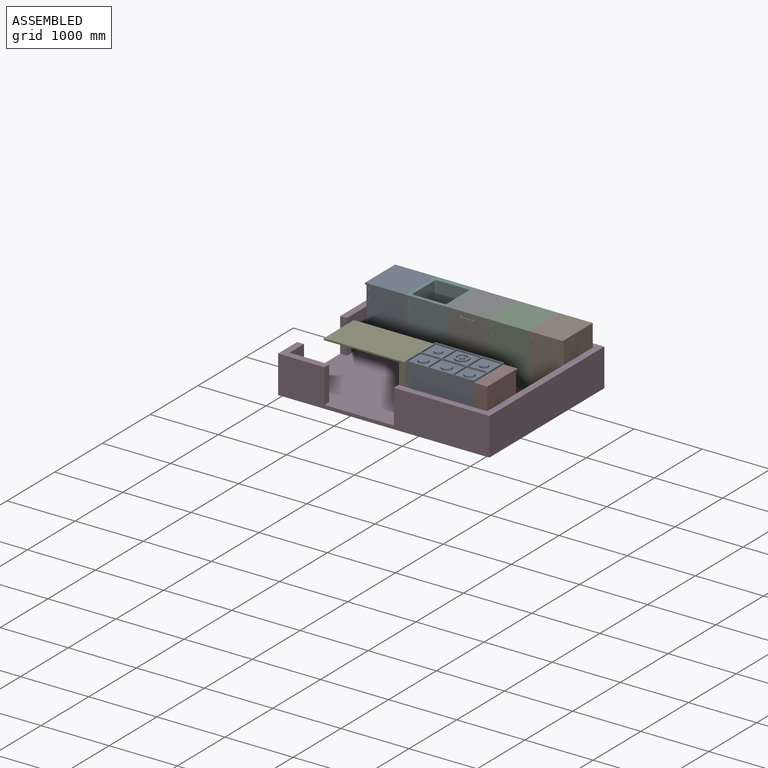
[diagram: assembled view]
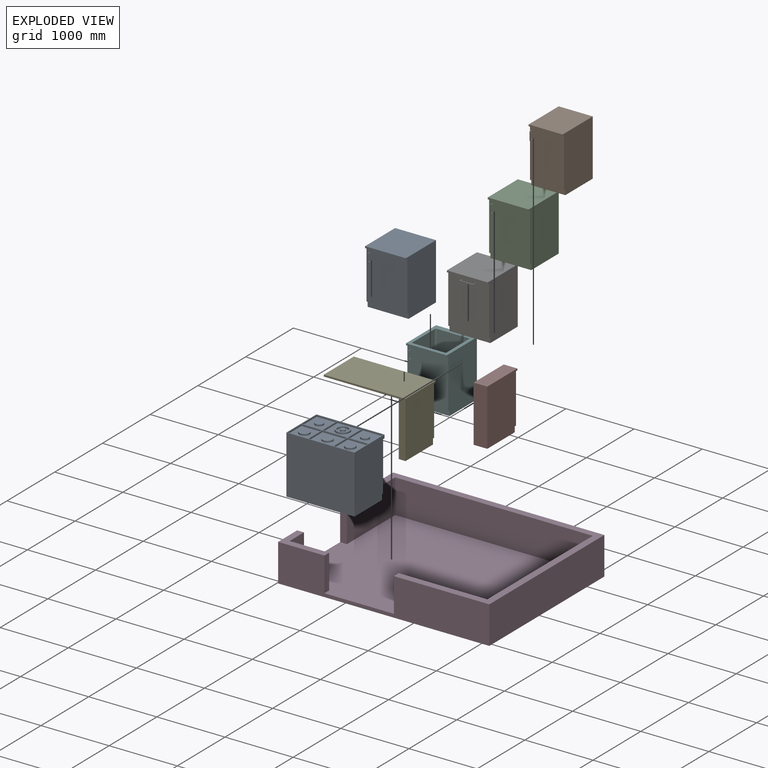
[diagram: exploded view]
GUIDED TOUR — MATED ASSEMBLY (Onshape document d16c2304ecbebba6e76022b3, AutoMate assembly d16c2304ecbebba6e76022b3_629947fe1b3868a177695bd1_581ccf06eaa958c4bb0ec982_default)

This assembly has 9 components, labeled P0..P8 below (a component is one placed occurrence of a part; the same part can appear more than once), held together by 8 mates. A mate is a constraint between two components; its type names the relative motion it leaves free:
  PLANAR — leaves sliding in the plane through the listed point (normal = the listed direction) and rotation about that normal free.
Axis/direction vectors are unit vectors and 'through' points are millimeter coordinates, both in the assembly's world frame.

MATES
  1. PLANAR "Planar 4": P2 <-> P6, direction (0.000, 0.000, 1.000) through (-1009.45, 1149.44, 1355.72) mm
  2. PLANAR "Planar 6": P4 <-> P3, direction (0.000, 0.000, 1.000) through (-1209.45, -1060.56, 1355.72) mm
  3. PLANAR "Planar 5": P1 <-> P2, direction (0.000, 0.000, 1.000) through (-409.45, 1149.44, 1355.72) mm
  4. PLANAR "Planar 1": P0 <-> P3, direction (0.000, 0.000, 1.000) through (-2809.45, 1149.44, 1355.72) mm
  5. PLANAR "Planar 8": P8 <-> P4, direction (0.000, -1.000, 0.000) through (-1109.45, -1060.56, 1355.72) mm
  6. PLANAR "Planar 3": P6 <-> P5, direction (0.000, 0.000, 1.000) through (-1609.45, 1149.44, 1355.72) mm
  7. PLANAR "Planar 9": P7 <-> P8, direction (0.000, 0.000, 1.000) through (-109.45, -1060.56, 1355.72) mm
  8. PLANAR "Planar 2": P5 <-> P0, direction (0.000, 0.000, 1.000) through (-2209.45, 1149.44, 1355.72) mm

ASSEMBLY ORDER
  1. P7 — the base component [order verified]
  2. P4 [order verified]
  3. P3 [order verified]
  4. P6 [order verified]
  5. P2 [order verified]
  6. P0 [order verified]
  7. P5 [order verified]
  8. P8 [order verified]
  9. P1 [order verified]
Order-tag legend:
  [order verified] — this step's position reverses a verified removal order: the component was checked to insert without passing through the ones already placed.

Of the 9 components, 3 carry the full construction recipe — the FeatureScript program that regenerates the part's solid from scratch; the rest are supplied as boundary geometry only.
Each toured component is shown spotlighted twice — in the assembled view, then in the exploded view, where a leader line traces a displaced component back to its assembled socket (saturated green if recipe-attached, orange if geometry-only; every other component desaturated gray) — followed by its recipe or geometry summary and the mates that hold it.
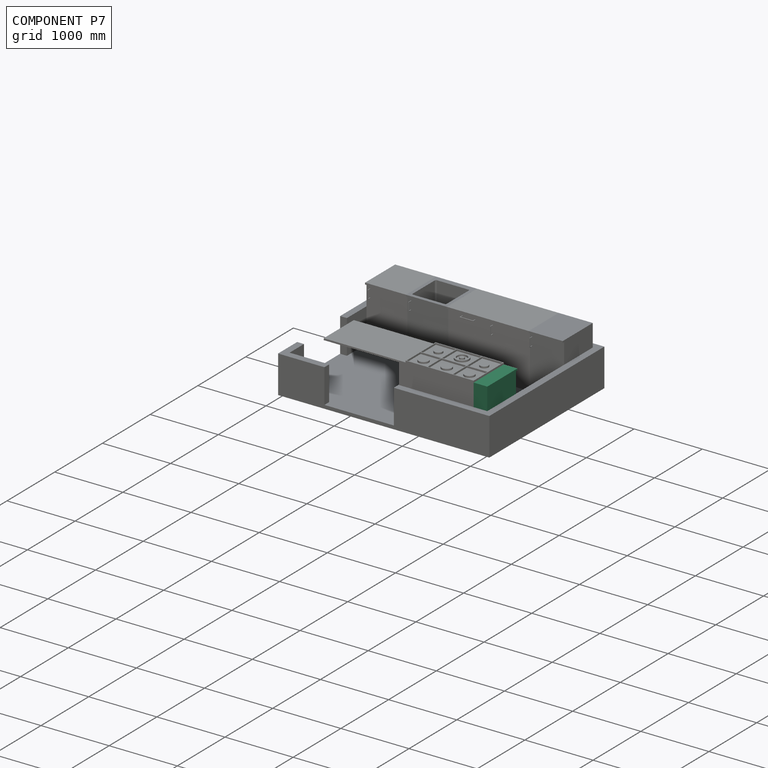
[diagram: component P7 — assembled]
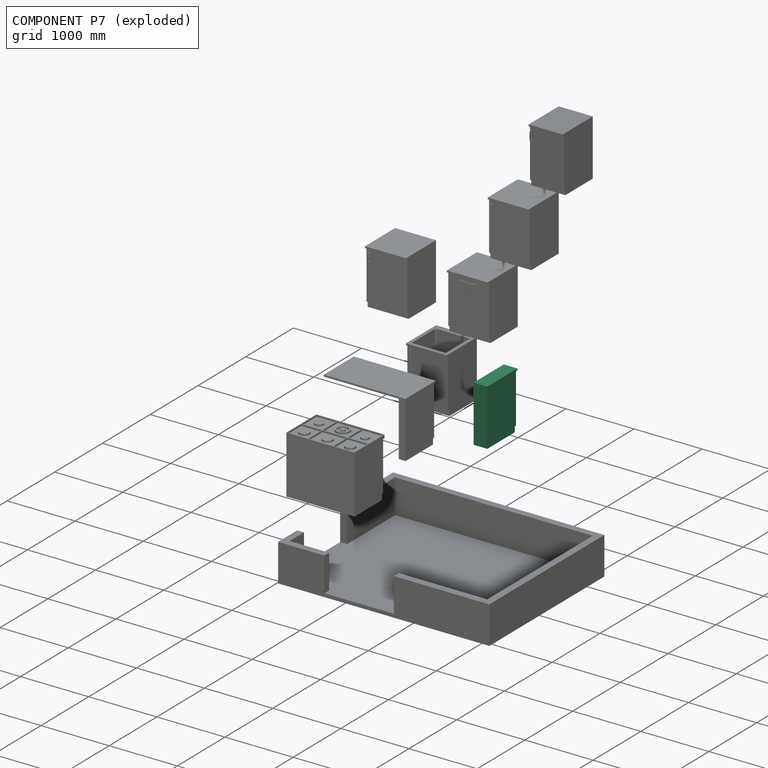
[diagram: component P7 — exploded]
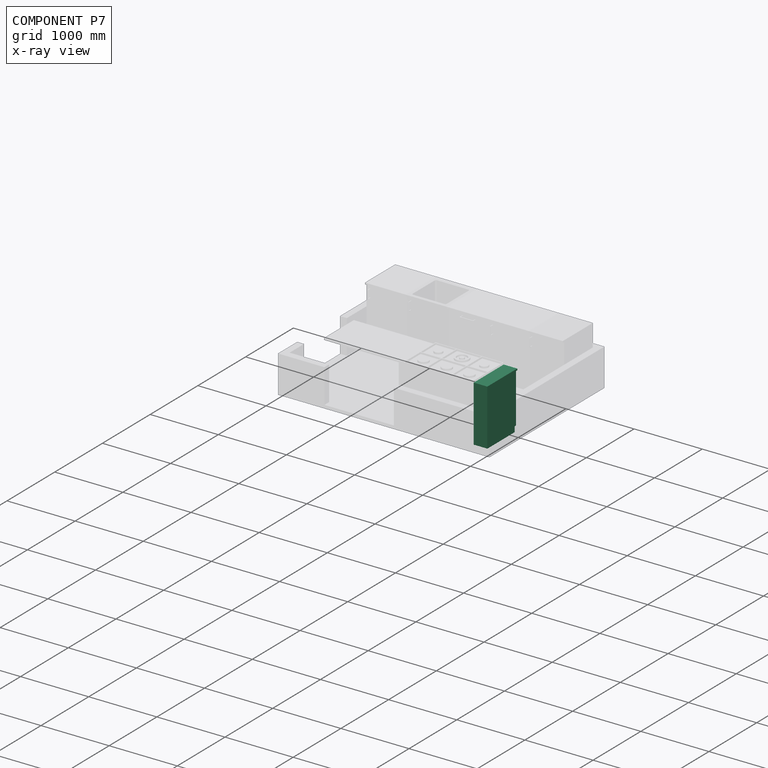
[diagram: component P7 — x-ray view]
COMPONENT P7 — recipe-attached (CADFS 00877743, mesh-verified: the recipe's output STEP matches this component's geometry to below the mesh-comparison resolution (tessellation chordal tolerance ~1.59 mm)).
Held by: PLANAR mate "Planar 9" to P8.
Construction recipe (FeatureScript — the CAD program that rebuilds this solid; sketch coordinates are in the units given by the * unit suffixes, e.g. mm):

FeatureScript 1511;
import(path : "onshape/std/geometry.fs", version : "1511.0");
import(path : "onshape/std/common.fs", version : "1511.0");
const mm = millimeter;
const VERTEX = EntityType.VERTEX;
const EDGE = EntityType.EDGE;
const FACE = EntityType.FACE;
const BODY = EntityType.BODY;
function v(x, y){return vector(x, y);}
function OD(order){return orderDisambiguation(order);}
function OSD(set){return originalSetDisambiguation(set);}
function TD(topology){return topologyDisambiguation(topology);}
function TDD(query){return trueDependencyDisambiguation(query);}
function sQuery(a, b, c) {return sketchEntityQuery(a, b, c);}

annotation { "Feature Type Name" : "Feature", "Feature Type Description" : "" }
export const myFeature = defineFeature(function(context is Context, id is Id, definition is map)
    precondition{}
    {
        {
            var Q0;
            Q0=qCreatedBy(makeId("Top.planeOp"),FACE);
            var sketch = newSketch(context, id + "F0", { "sketchPlane" : qUnion([Q0])});
            skLineSegment(sketch, "E0.bottom", {"start": v(-300, 100) * mm, "end": v(300, 100) * mm});
            skLineSegment(sketch, "E0.top", {"start": v(-300, -100) * mm, "end": v(300, -100) * mm});
            skLineSegment(sketch, "E0.left", {"start": v(-300, 100) * mm, "end": v(-300, -100) * mm});
            skLineSegment(sketch, "E0.right", {"start": v(300, 100) * mm, "end": v(300, -100) * mm});
            skPoint(sketch, "E0.middle", {"position": v(0, 0) * mm});
            skSolve(sketch);
        }
        {
            var Q0;
            Q0=qSketchRegion(id+"F0",true);
            extrude(context, id + "F1", {"entities" : qUnion([Q0]), "depth" : 800 * mm, "offsetDistance" : 25 * mm});
        }
        {
            var Q0;
            Q0=makeQuery(id+"F1.opExtrude","SWEPT_FACE",FACE,{"disambiguationData":[OSD([sQuery(id+"F0.wireOp",EDGE,"E0.right")])]});
            var sketch = newSketch(context, id + "F2", { "sketchPlane" : qUnion([Q0])});
            skLineSegment(sketch, "E1.bottom", {"start": v(-100, 0) * mm, "end": v(100, 0) * mm});
            skLineSegment(sketch, "E1.top", {"start": v(-100, 80) * mm, "end": v(100, 80) * mm});
            skLineSegment(sketch, "E1.left", {"start": v(-100, 0) * mm, "end": v(-100, 80) * mm});
            skLineSegment(sketch, "E1.right", {"start": v(100, 0) * mm, "end": v(100, 80) * mm});
            skSolve(sketch);
        }
        {
            var Q0;
            Q0=qSketchRegion(id+"F2",true);
            extrude(context, id + "F3", {"entities" : qUnion([Q0]), "operationType" : NewBodyOperationType.REMOVE, "oppositeDirection" : true, "depth" : 25 * mm, "offsetDistance" : 25 * mm});
        }
        {
            var Q0;
            Q0=makeQuery(id+"F1.opExtrude","CAP_FACE",FACE,{"disambiguationData":[OSD([sQuery(id+"F0.wireOp",EDGE,"E0.bottom"),sQuery(id+"F0.wireOp",EDGE,"E0.top"),sQuery(id+"F0.wireOp",EDGE,"E0.left"),sQuery(id+"F0.wireOp",EDGE,"E0.right")])],"isStart":false});
            var sketch = newSketch(context, id + "F4", { "sketchPlane" : qUnion([Q0])});
            skLineSegment(sketch, "E2.bottom", {"start": v(-300, -100) * mm, "end": v(330, -100) * mm});
            skLineSegment(sketch, "E2.top", {"start": v(-300, 100) * mm, "end": v(330, 100) * mm});
            skLineSegment(sketch, "E2.left", {"start": v(-300, -100) * mm, "end": v(-300, 100) * mm});
            skLineSegment(sketch, "E2.right", {"start": v(330, -100) * mm, "end": v(330, 100) * mm});
            skSolve(sketch);
        }
        {
            var Q0;
            Q0=qSketchRegion(id+"F4",true);
            extrude(context, id + "F5", {"entities" : qUnion([Q0]), "operationType" : NewBodyOperationType.ADD, "depth" : 25 * mm, "offsetDistance" : 25 * mm});
        }
    });
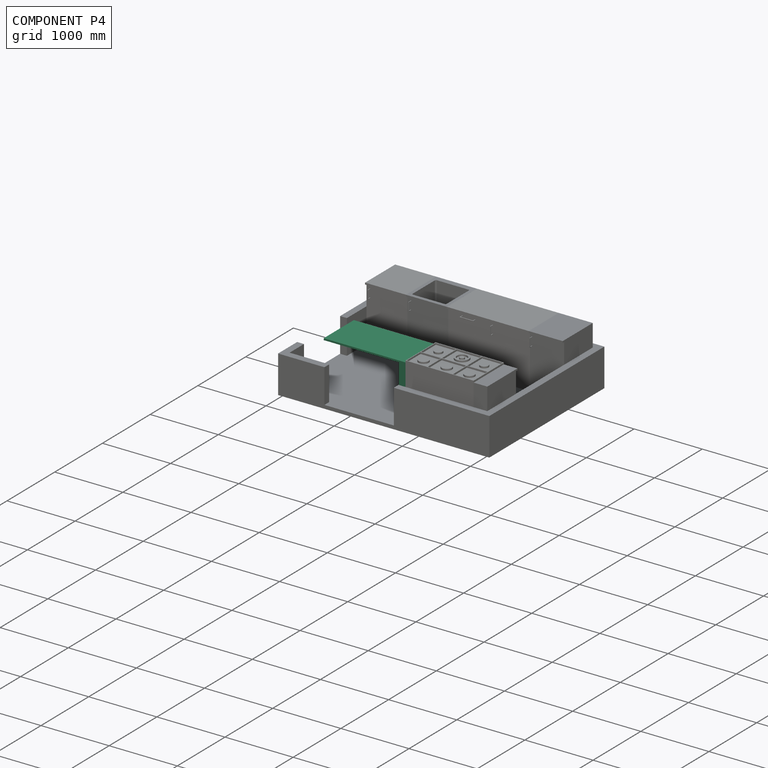
[diagram: component P4 — assembled]
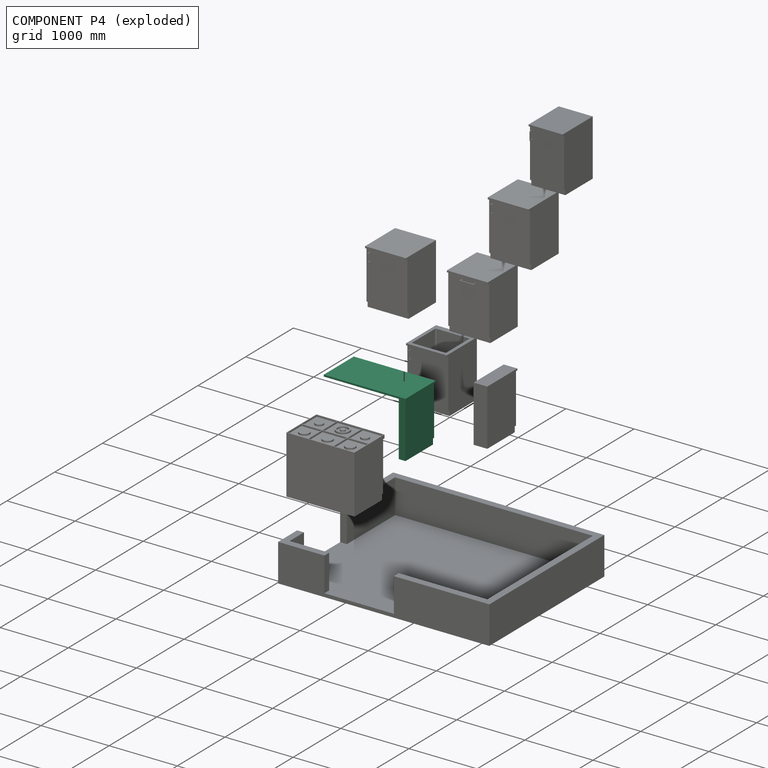
[diagram: component P4 — exploded]
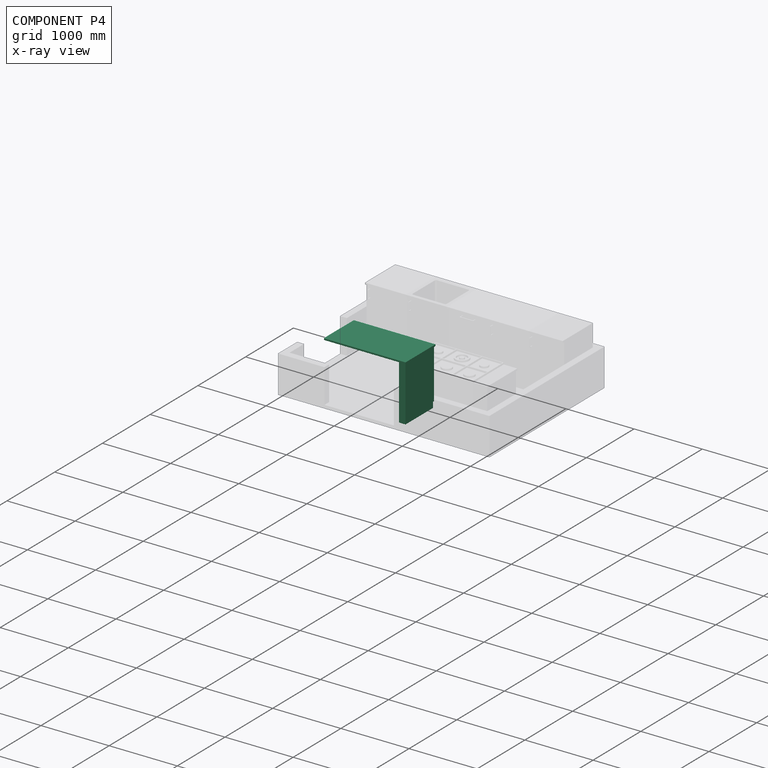
[diagram: component P4 — x-ray view]
COMPONENT P4 — recipe-attached (CADFS 00870529, mesh-verified: the recipe's output STEP matches this component's geometry to below the mesh-comparison resolution (tessellation chordal tolerance ~2.38 mm)).
Held by: PLANAR mate "Planar 6" to P3; PLANAR mate "Planar 8" to P8.
Construction recipe (FeatureScript — the CAD program that rebuilds this solid; sketch coordinates are in the units given by the * unit suffixes, e.g. mm):

FeatureScript 1511;
import(path : "onshape/std/geometry.fs", version : "1511.0");
import(path : "onshape/std/common.fs", version : "1511.0");
const mm = millimeter;
const VERTEX = EntityType.VERTEX;
const EDGE = EntityType.EDGE;
const FACE = EntityType.FACE;
const BODY = EntityType.BODY;
function v(x, y){return vector(x, y);}
function OD(order){return orderDisambiguation(order);}
function OSD(set){return originalSetDisambiguation(set);}
function TD(topology){return topologyDisambiguation(topology);}
function TDD(query){return trueDependencyDisambiguation(query);}
function sQuery(a, b, c) {return sketchEntityQuery(a, b, c);}

annotation { "Feature Type Name" : "Feature", "Feature Type Description" : "" }
export const myFeature = defineFeature(function(context is Context, id is Id, definition is map)
    precondition{}
    {
        {
            var Q0;
            Q0=qCreatedBy(makeId("Top.planeOp"),FACE);
            var sketch = newSketch(context, id + "F0", { "sketchPlane" : qUnion([Q0])});
            skLineSegment(sketch, "E0.bottom", {"start": v(-300, 50) * mm, "end": v(300, 50) * mm});
            skLineSegment(sketch, "E0.top", {"start": v(-300, -50) * mm, "end": v(300, -50) * mm});
            skLineSegment(sketch, "E0.left", {"start": v(-300, 50) * mm, "end": v(-300, -50) * mm});
            skLineSegment(sketch, "E0.right", {"start": v(300, 50) * mm, "end": v(300, -50) * mm});
            skPoint(sketch, "E0.middle", {"position": v(0, 0) * mm});
            skSolve(sketch);
        }
        {
            var Q0;
            Q0=qSketchRegion(id+"F0",true);
            extrude(context, id + "F1", {"entities" : qUnion([Q0]), "depth" : 800 * mm, "offsetDistance" : 25 * mm});
        }
        {
            var Q0;
            Q0=makeQuery(id+"F1.opExtrude","SWEPT_FACE",FACE,{"disambiguationData":[OSD([sQuery(id+"F0.wireOp",EDGE,"E0.right")])]});
            var sketch = newSketch(context, id + "F2", { "sketchPlane" : qUnion([Q0])});
            skLineSegment(sketch, "E1.bottom", {"start": v(-50, 0) * mm, "end": v(50, 0) * mm});
            skLineSegment(sketch, "E1.top", {"start": v(-50, 80) * mm, "end": v(50, 80) * mm});
            skLineSegment(sketch, "E1.left", {"start": v(-50, 0) * mm, "end": v(-50, 80) * mm});
            skLineSegment(sketch, "E1.right", {"start": v(50, 0) * mm, "end": v(50, 80) * mm});
            skSolve(sketch);
        }
        {
            var Q0;
            Q0=qSketchRegion(id+"F2",true);
            extrude(context, id + "F3", {"entities" : qUnion([Q0]), "operationType" : NewBodyOperationType.REMOVE, "oppositeDirection" : true, "depth" : 25 * mm, "offsetDistance" : 25 * mm});
        }
        {
            var Q0;
            Q0=makeQuery(id+"F1.opExtrude","CAP_FACE",FACE,{"disambiguationData":[OSD([sQuery(id+"F0.wireOp",EDGE,"E0.bottom"),sQuery(id+"F0.wireOp",EDGE,"E0.top"),sQuery(id+"F0.wireOp",EDGE,"E0.left"),sQuery(id+"F0.wireOp",EDGE,"E0.right")])],"isStart":false});
            var sketch = newSketch(context, id + "F4", { "sketchPlane" : qUnion([Q0])});
            skLineSegment(sketch, "E2.bottom", {"start": v(-300, -50) * mm, "end": v(330, -50) * mm});
            skLineSegment(sketch, "E2.top", {"start": v(-300, 50) * mm, "end": v(330, 50) * mm});
            skLineSegment(sketch, "E2.left", {"start": v(-300, -50) * mm, "end": v(-300, 50) * mm});
            skLineSegment(sketch, "E2.right", {"start": v(330, -50) * mm, "end": v(330, 50) * mm});
            skSolve(sketch);
        }
        {
            var Q0;
            Q0=qSketchRegion(id+"F4",true);
            extrude(context, id + "F5", {"entities" : qUnion([Q0]), "operationType" : NewBodyOperationType.ADD, "depth" : 25 * mm, "offsetDistance" : 25 * mm});
        }
        {
            var Q0;
            Q0=makeQuery(id+"F5.boolean.opBoolean","MERGE",FACE,{"derivedFrom":[makeQuery(id+"F1.opExtrude","SWEPT_FACE",FACE,{"disambiguationData":[OSD([sQuery(id+"F0.wireOp",EDGE,"E0.bottom")])]}),makeQuery(id+"F5.opExtrude","SWEPT_FACE",FACE,{"disambiguationData":[OSD([sQuery(id+"F4.wireOp",EDGE,"E2.top")])]})]});
            var sketch = newSketch(context, id + "F6", { "sketchPlane" : qUnion([Q0])});
            skLineSegment(sketch, "E3.bottom", {"start": v(-330, 800) * mm, "end": v(300, 800) * mm});
            skLineSegment(sketch, "E3.top", {"start": v(-330, 825) * mm, "end": v(300, 825) * mm});
            skLineSegment(sketch, "E3.left", {"start": v(-330, 800) * mm, "end": v(-330, 825) * mm});
            skLineSegment(sketch, "E3.right", {"start": v(300, 800) * mm, "end": v(300, 825) * mm});
            skSolve(sketch);
        }
        {
            var Q0;
            Q0 = qSketchRegion(id + "F6", true);
            extrude(context, id + "F7", {"entities" : qUnion([Q0]), "operationType" : NewBodyOperationType.ADD, "depth" : 1100 * mm, "offsetDistance" : 25 * mm});
        }
    });
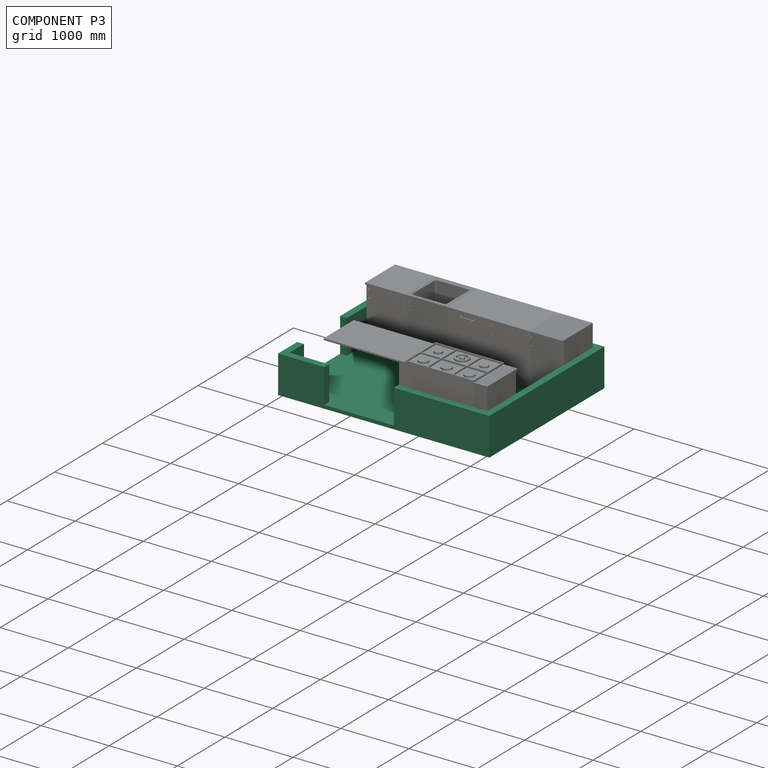
[diagram: component P3 — assembled]
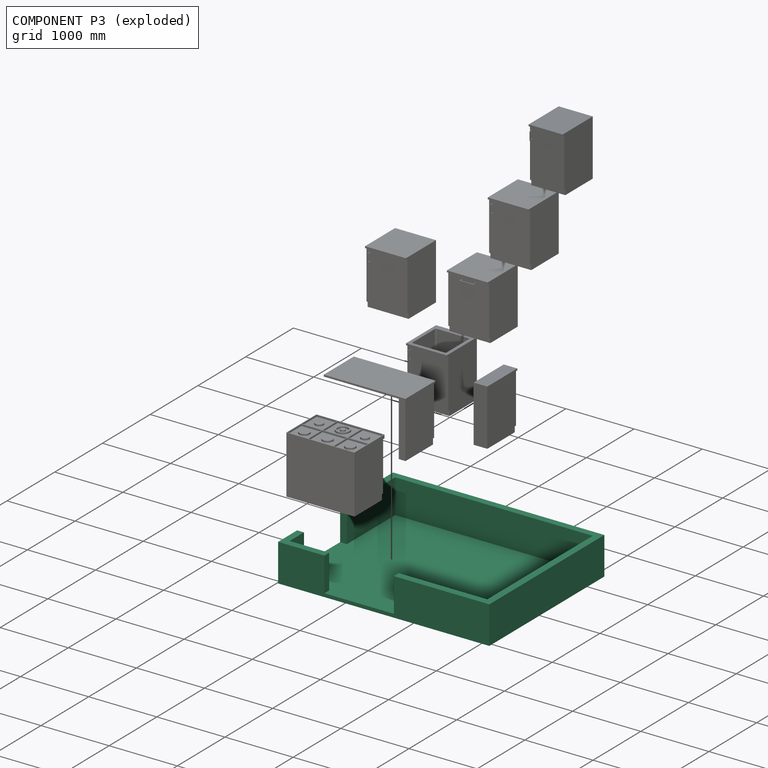
[diagram: component P3 — exploded]
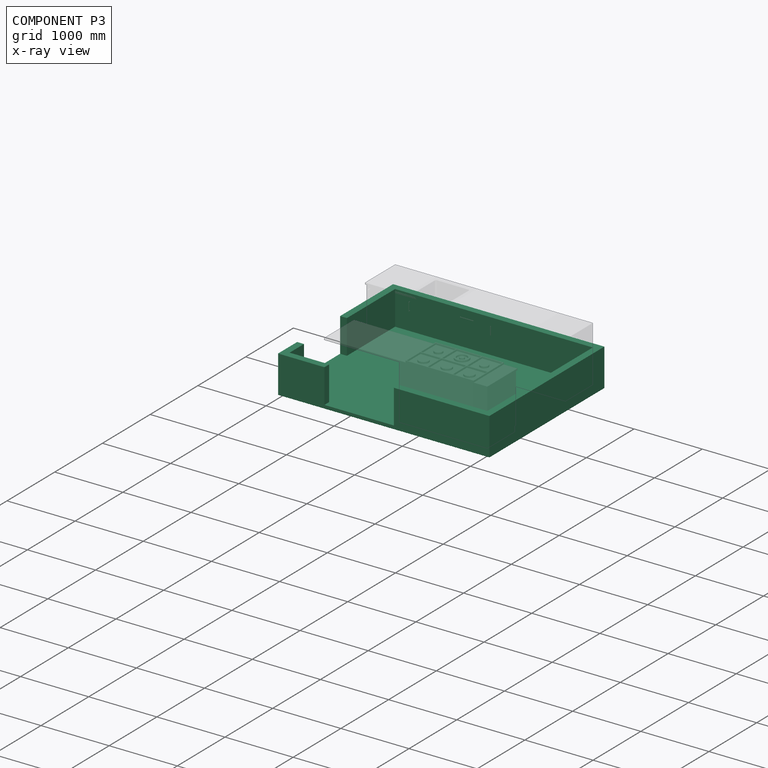
[diagram: component P3 — x-ray view]
COMPONENT P3 — recipe-attached (CADFS 00877741, mesh-verified: the recipe's output STEP matches this component's geometry to below the mesh-comparison resolution (tessellation chordal tolerance ~5.95 mm)).
Held by: PLANAR mate "Planar 6" to P4; PLANAR mate "Planar 1" to P0.
Construction recipe (FeatureScript — the CAD program that rebuilds this solid; sketch coordinates are in the units given by the * unit suffixes, e.g. mm):

FeatureScript 1511;
import(path : "onshape/std/geometry.fs", version : "1511.0");
import(path : "onshape/std/common.fs", version : "1511.0");
const mm = millimeter;
const VERTEX = EntityType.VERTEX;
const EDGE = EntityType.EDGE;
const FACE = EntityType.FACE;
const BODY = EntityType.BODY;
function v(x, y){return vector(x, y);}
function OD(order){return orderDisambiguation(order);}
function OSD(set){return originalSetDisambiguation(set);}
function TD(topology){return topologyDisambiguation(topology);}
function TDD(query){return trueDependencyDisambiguation(query);}
function sQuery(a, b, c) {return sketchEntityQuery(a, b, c);}

annotation { "Feature Type Name" : "Feature", "Feature Type Description" : "" }
export const myFeature = defineFeature(function(context is Context, id is Id, definition is map)
    precondition{}
    {
        {
            var Q0;
            Q0=qCreatedBy(makeId("Top.planeOp"),FACE);
            var sketch = newSketch(context, id + "F0", { "sketchPlane" : qUnion([Q0])});
            skLineSegment(sketch, "E0.bottom", {"start": v(-1550, 1205) * mm, "end": v(1550, 1205) * mm});
            skLineSegment(sketch, "E0.top", {"start": v(-1550, -1205) * mm, "end": v(1550, -1205) * mm});
            skLineSegment(sketch, "E0.left", {"start": v(-1550, 1205) * mm, "end": v(-1550, -1205) * mm});
            skLineSegment(sketch, "E0.right", {"start": v(1550, 1205) * mm, "end": v(1550, -1205) * mm});
            skPoint(sketch, "E0.middle", {"position": v(0, 0) * mm});
            skLineSegment(sketch, "E1.bottom", {"start": v(-1450, 1105) * mm, "end": v(1450, 1105) * mm});
            skLineSegment(sketch, "E1.left", {"start": v(-1450, 1105) * mm, "end": v(-1450, -1105) * mm});
            skLineSegment(sketch, "E1.right", {"start": v(1450, 1105) * mm, "end": v(1450, -1105) * mm});
            skLineSegment(sketch, "E2", {"start": v(-870, -1205) * mm, "end": v(-870, -1105) * mm});
            skLineSegment(sketch, "E3", {"start": v(150, -1105) * mm, "end": v(150, -1205) * mm});
            skLineSegment(sketch, "E4", {"start": v(-870, -1105) * mm, "end": v(-1450, -1105) * mm});
            skLineSegment(sketch, "E5", {"start": v(150, -1105) * mm, "end": v(1450, -1105) * mm});
            skSolve(sketch);
        }
        {
            var Q0;
            Q0=makeQuery(id+"F0.imprint","IMPRINT",FACE,{"disambiguationData":[TD([[makeQuery(id+"F0.imprint","IMPRINT",EDGE,{"derivedFrom":sQuery(id+"F0.wireOp",EDGE,"E0.bottom")}),-1.0]])]});
            extrude(context, id + "F1", {"entities" : qUnion([Q0]), "depth" : 500 * mm, "offsetDistance" : 25 * mm});
        }
        {
            var Q0;
            Q0=qSketchRegion(id+"F0",true);
            extrude(context, id + "F2", {"entities" : qUnion([Q0]), "operationType" : NewBodyOperationType.ADD, "oppositeDirection" : true, "depth" : 51 * mm, "offsetDistance" : 25 * mm});
        }
        {
            var Q0;
            Q0=makeQuery(id+"F1.opExtrude","SWEPT_FACE",FACE,{"disambiguationData":[OSD([sQuery(id+"F0.wireOp",EDGE,"E1.left")])]});
            var sketch = newSketch(context, id + "F3", { "sketchPlane" : qUnion([Q0])});
            skLineSegment(sketch, "E6.bottom", {"start": v(-805, 0) * mm, "end": v(95, 0) * mm});
            skLineSegment(sketch, "E6.top", {"start": v(-805, 500) * mm, "end": v(95, 500) * mm});
            skLineSegment(sketch, "E6.left", {"start": v(-805, 0) * mm, "end": v(-805, 500) * mm});
            skLineSegment(sketch, "E6.right", {"start": v(95, 0) * mm, "end": v(95, 500) * mm});
            skSolve(sketch);
        }
        {
            var Q0;
            Q0=qSketchRegion(id+"F3",true);
            extrude(context, id + "F4", {"entities" : qUnion([Q0]), "operationType" : NewBodyOperationType.REMOVE, "oppositeDirection" : true, "depth" : 190 * mm, "offsetDistance" : 25 * mm});
        }
    });
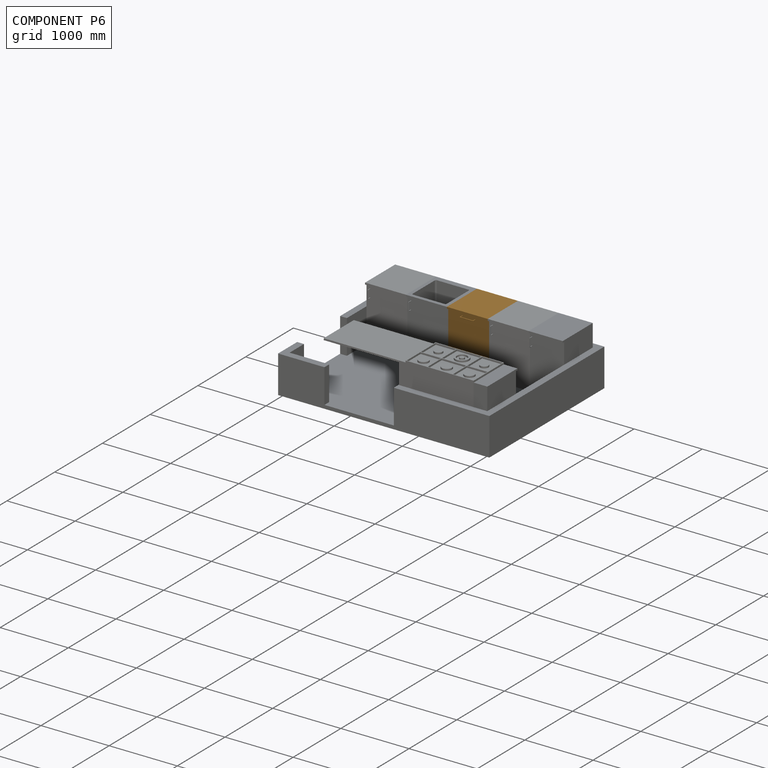
[diagram: component P6 — assembled]
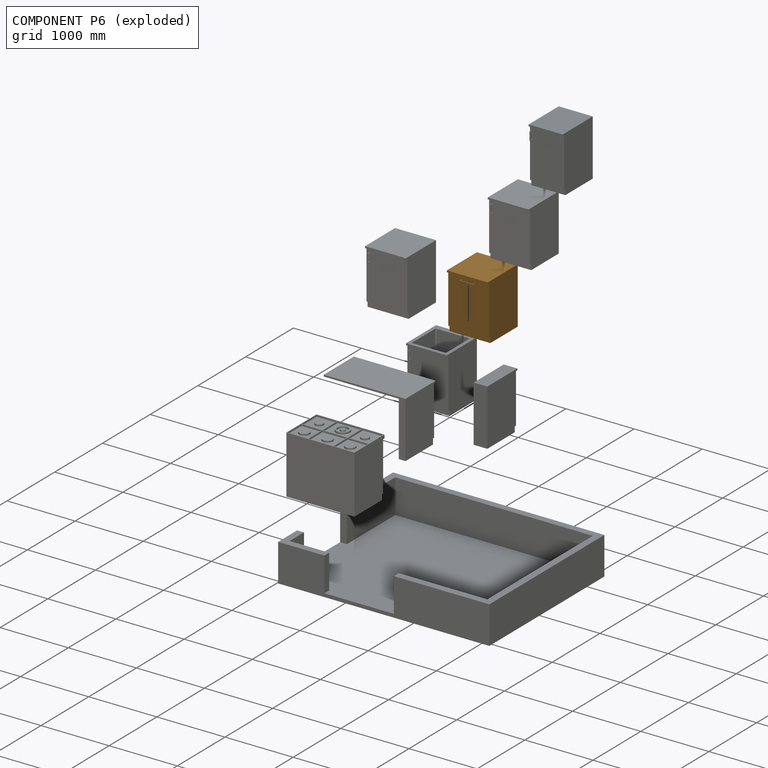
[diagram: component P6 — exploded]
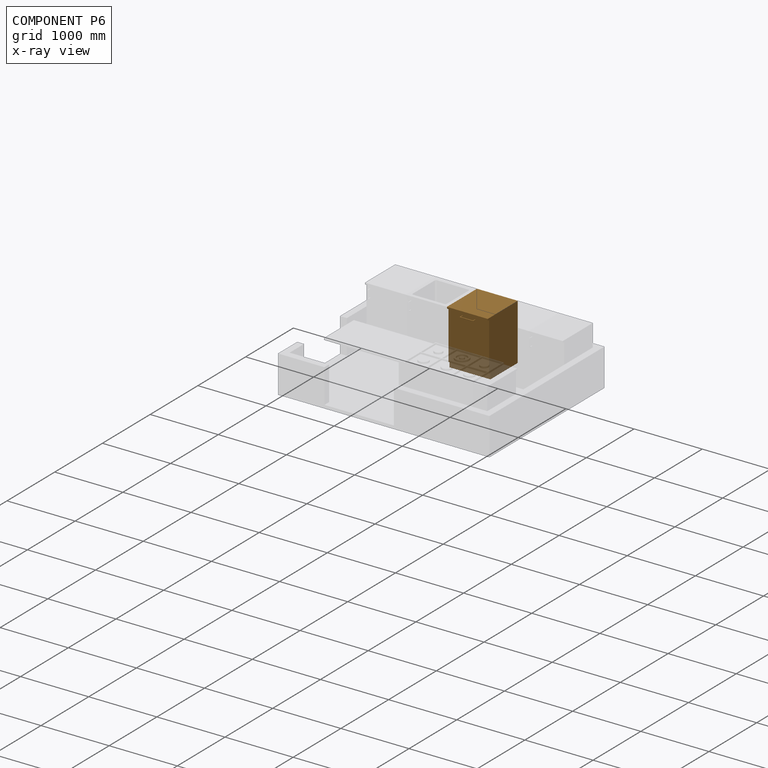
[diagram: component P6 — x-ray view]
COMPONENT P6 — geometry summary (no construction recipe available for this part):
  bounding box: 825.0 x 650.0 x 600.0 mm
  B-rep topology: 1 solid, 15 faces, 80 edges
  volume: 296271920 mm^3 (92% of its bounding box)
  symmetry: mirror-symmetric across its y mid-plane
Held by: PLANAR mate "Planar 4" to P2; PLANAR mate "Planar 3" to P5.
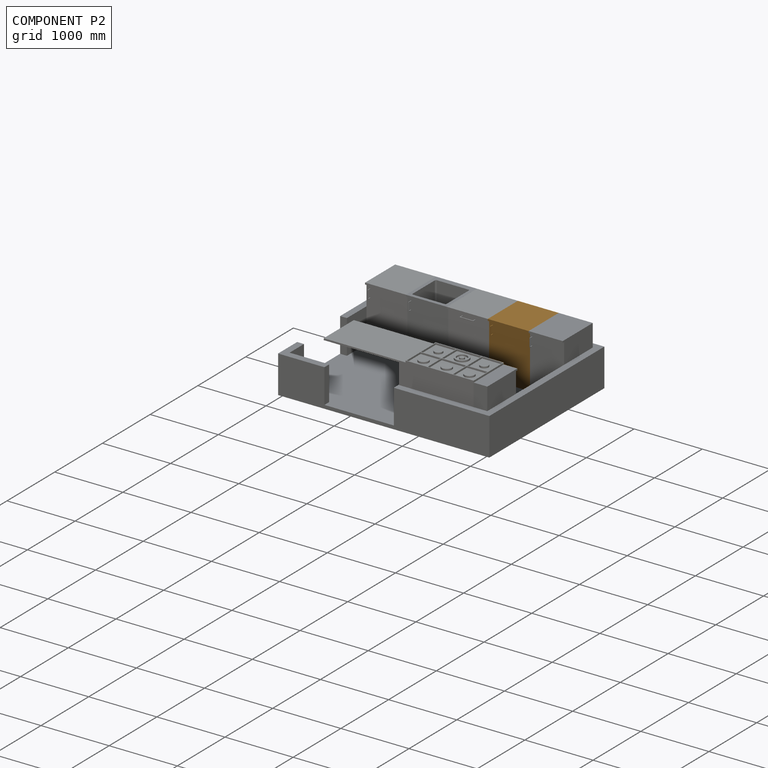
[diagram: component P2 — assembled]
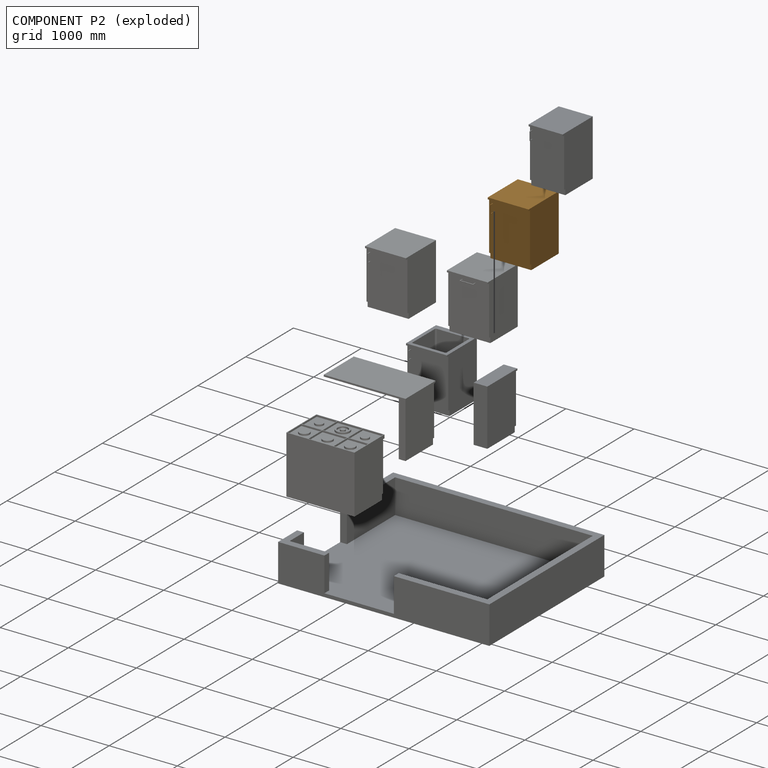
[diagram: component P2 — exploded]
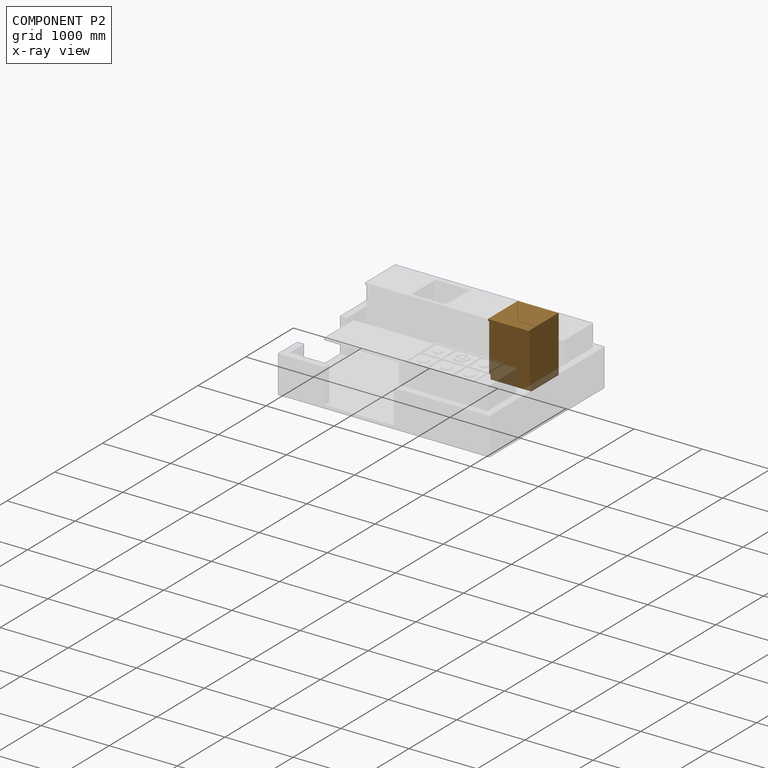
[diagram: component P2 — x-ray view]
COMPONENT P2 — geometry summary (no construction recipe available for this part):
  bounding box: 825.0 x 650.0 x 600.0 mm
  B-rep topology: 1 solid, 15 faces, 80 edges
  volume: 296266422 mm^3 (92% of its bounding box)
  symmetry: mirror-symmetric across its y mid-plane
Held by: PLANAR mate "Planar 4" to P6; PLANAR mate "Planar 5" to P1.
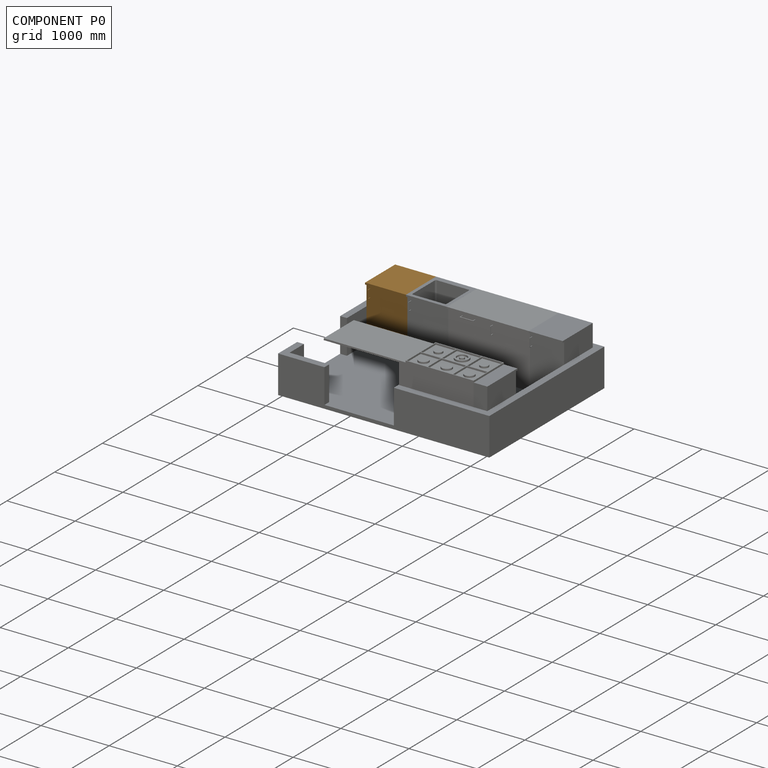
[diagram: component P0 — assembled]
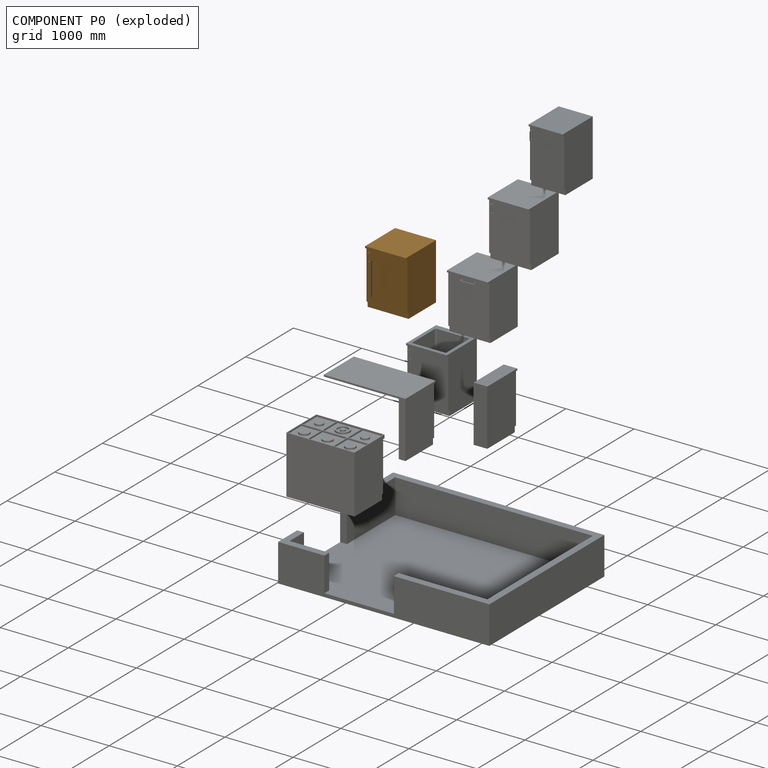
[diagram: component P0 — exploded]
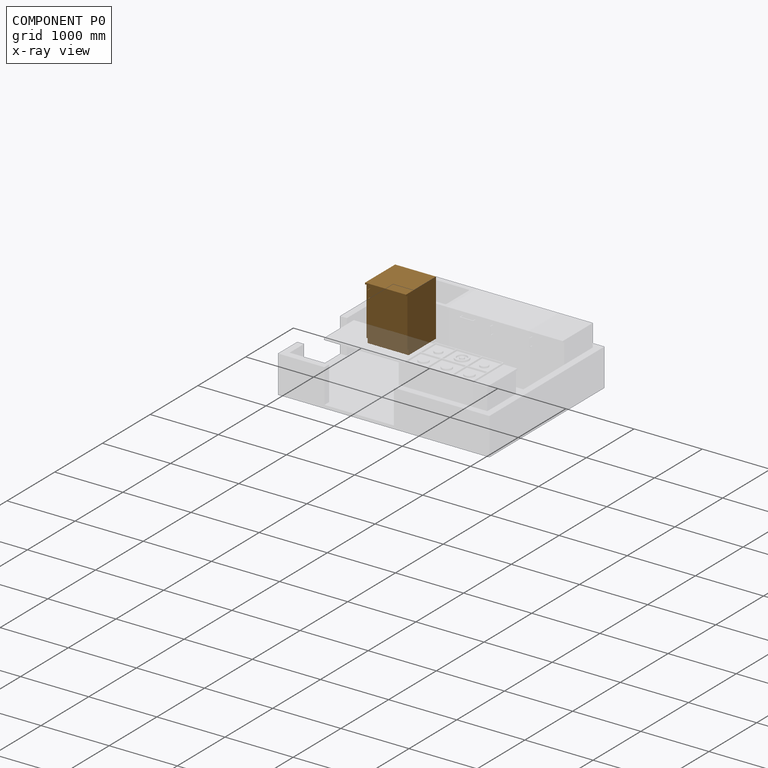
[diagram: component P0 — x-ray view]
COMPONENT P0 — geometry summary (no construction recipe available for this part):
  bounding box: 825.0 x 650.0 x 600.0 mm
  B-rep topology: 1 solid, 15 faces, 80 edges
  volume: 296266422 mm^3 (92% of its bounding box)
  symmetry: mirror-symmetric across its y mid-plane
Held by: PLANAR mate "Planar 1" to P3; PLANAR mate "Planar 2" to P5.
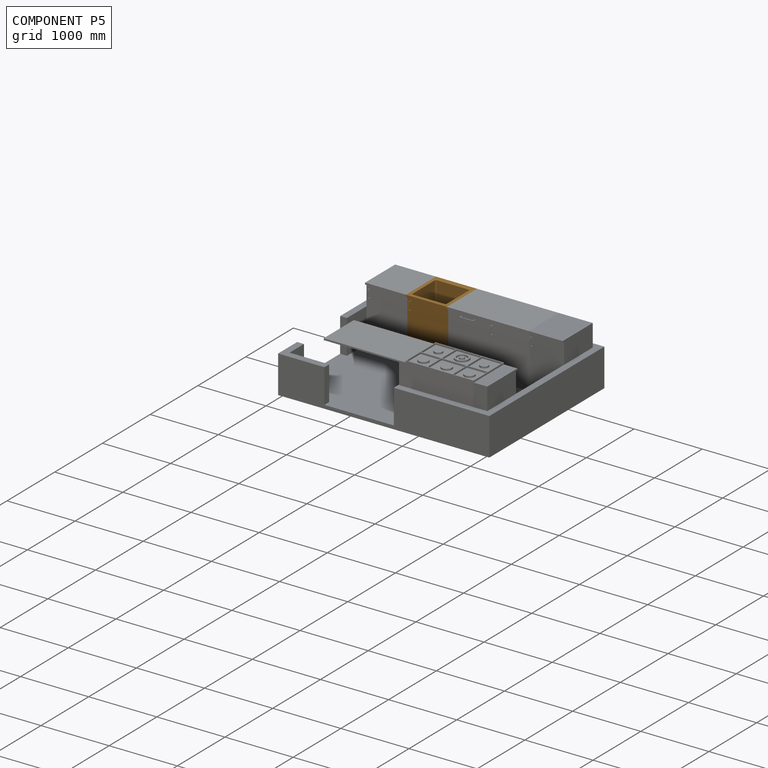
[diagram: component P5 — assembled]
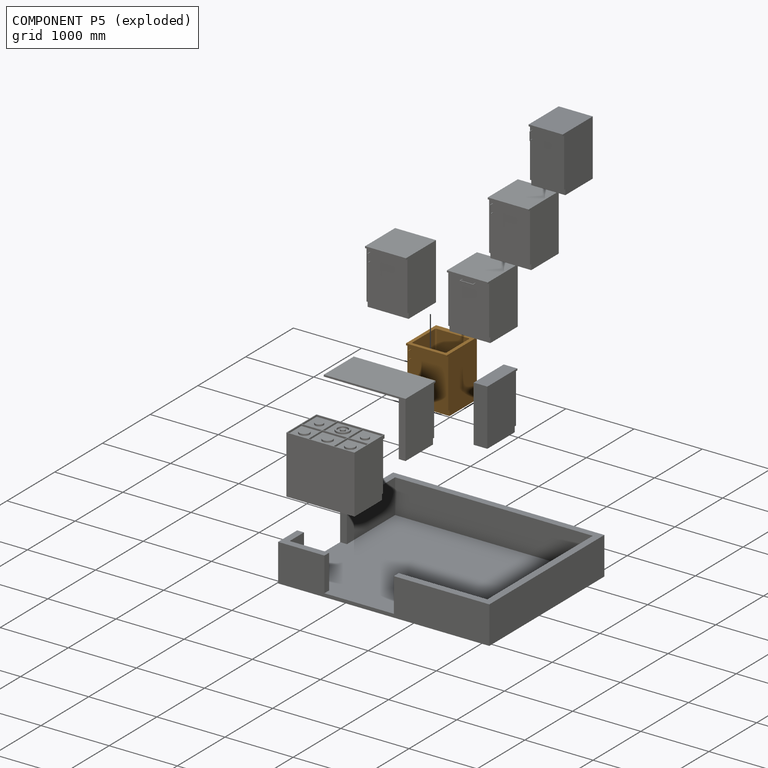
[diagram: component P5 — exploded]
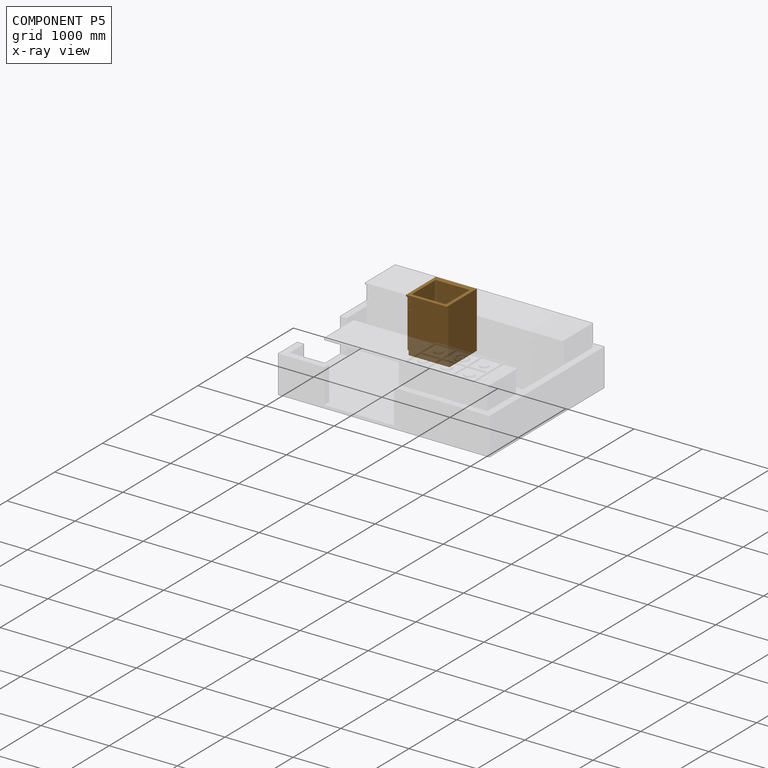
[diagram: component P5 — x-ray view]
COMPONENT P5 — geometry summary (no construction recipe available for this part):
  bounding box: 825.0 x 650.0 x 600.0 mm
  B-rep topology: 1 solid, 34 faces, 169 edges
  volume: 196325904 mm^3 (61% of its bounding box)
  symmetry: mirror-symmetric across its y mid-plane
Held by: PLANAR mate "Planar 3" to P6; PLANAR mate "Planar 2" to P0.
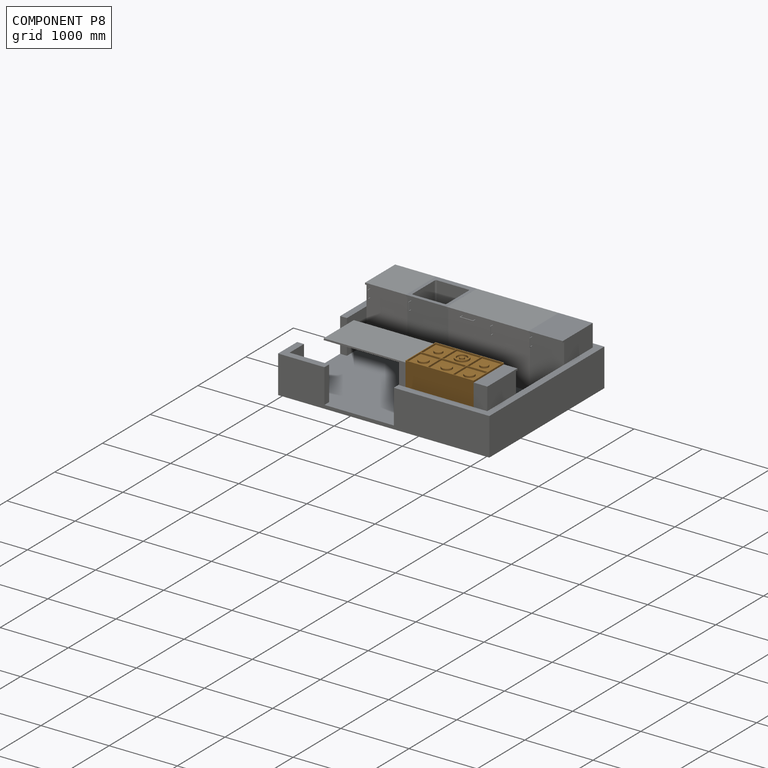
[diagram: component P8 — assembled]
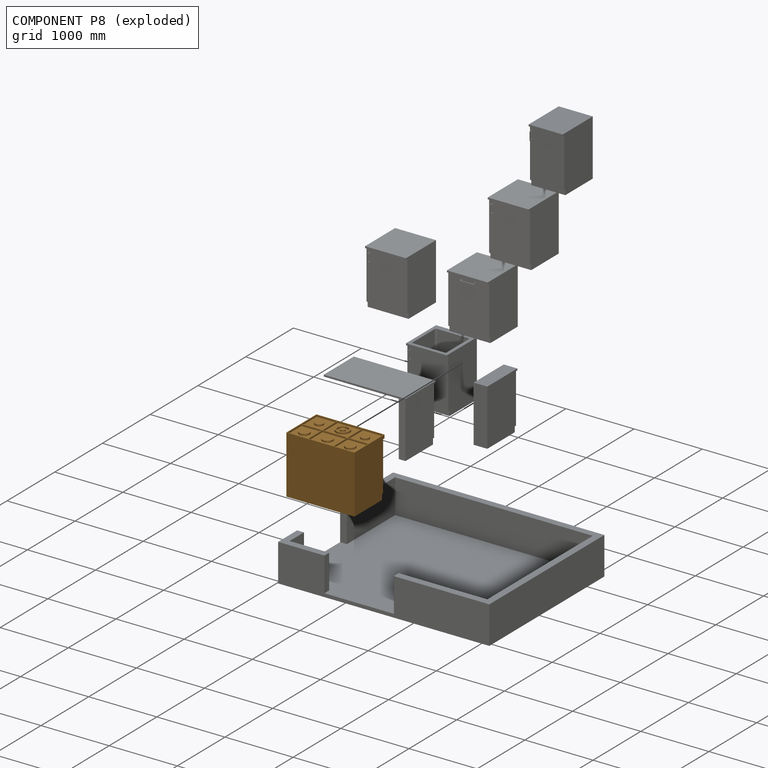
[diagram: component P8 — exploded]
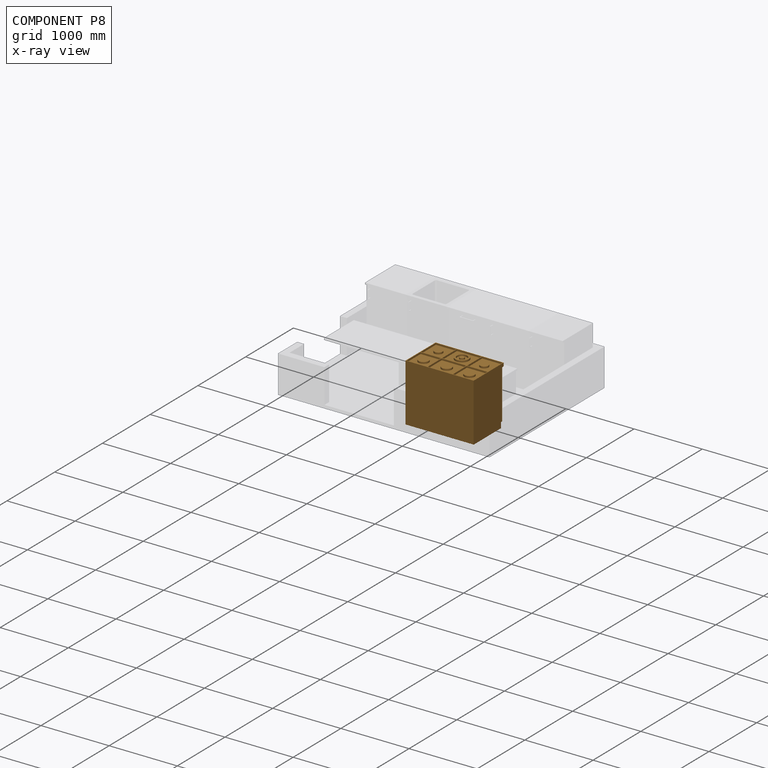
[diagram: component P8 — x-ray view]
COMPONENT P8 — geometry summary (no construction recipe available for this part):
  bounding box: 1000.0 x 850.0 x 650.0 mm
  B-rep topology: 1 solid, 81 faces, 336 edges
  volume: 494907994 mm^3 (90% of its bounding box)
  symmetry: mirror-symmetric across its y mid-plane
Held by: PLANAR mate "Planar 8" to P4; PLANAR mate "Planar 9" to P7.
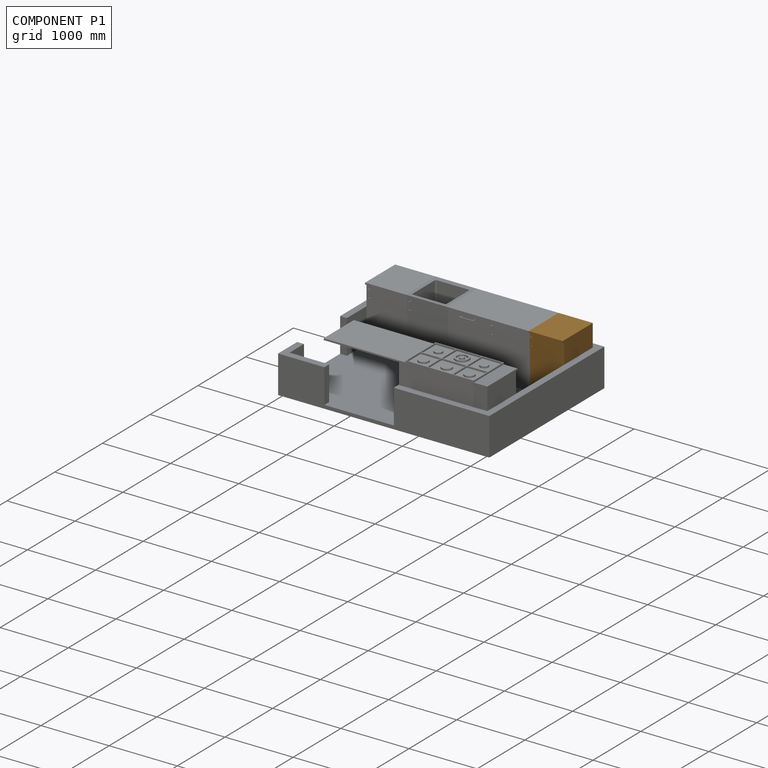
[diagram: component P1 — assembled]
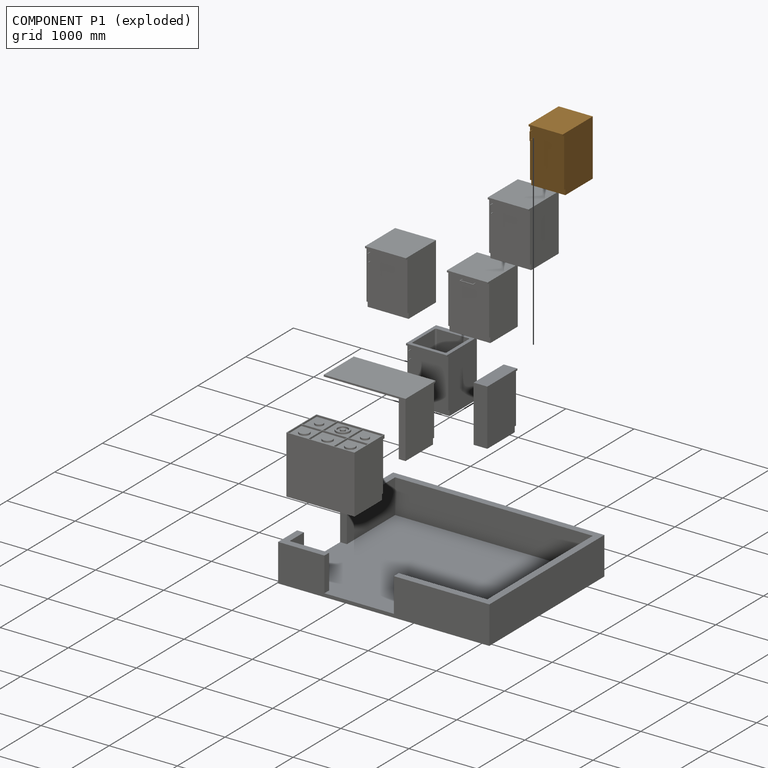
[diagram: component P1 — exploded]
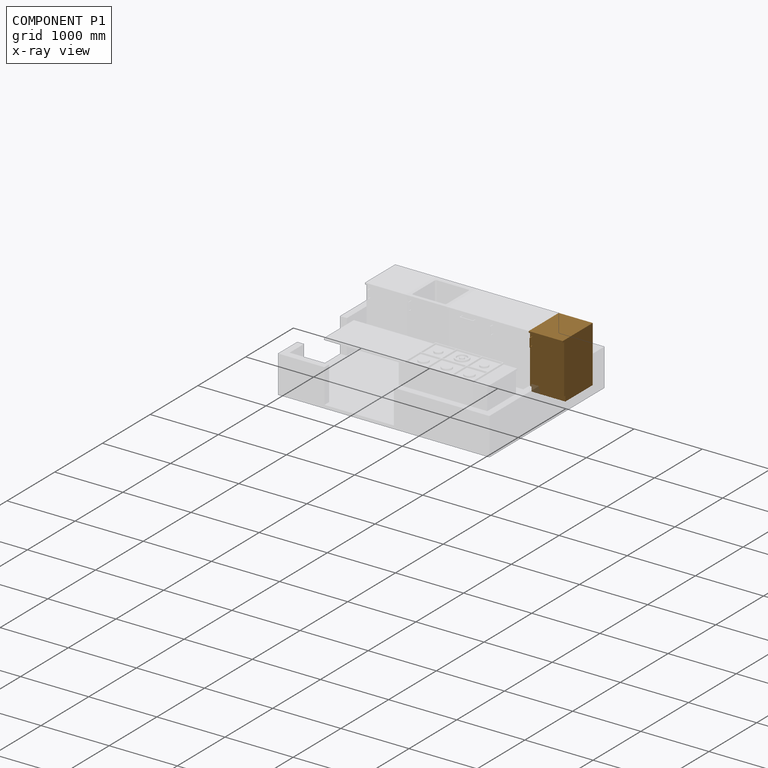
[diagram: component P1 — x-ray view]
COMPONENT P1 — geometry summary (no construction recipe available for this part):
  bounding box: 825.0 x 650.0 x 500.0 mm
  B-rep topology: 1 solid, 15 faces, 80 edges
  volume: 246891422 mm^3 (92% of its bounding box)
  symmetry: mirror-symmetric across its y mid-plane
Held by: PLANAR mate "Planar 5" to P2.
PROVENANCE & LICENSES
Assembly (occurrences, transforms, mates, per-part STEP geometry): AutoMate dataset, Zenodo record 7776208, CC0.
Construction recipes: CADFS (HuggingFace VladPyatov/CADFS, CC-BY-4.0, layered over the ABC dataset), FeatureScript reconstruction programs keyed by ABC model id.
Join: ABC meta listings map ABC model id -> Onshape documentId; within a shared document, parts are matched by geometric signature (bounding-box dims + volume at 0.1% relative tolerance, exact B-rep face/solid counts).
Verification: 3 of this assembly's 9 components carry a recipe attachment, and every attachment is mesh-verified: the CADFS STEP and the AutoMate member STEP were compared as meshes in their shared local frame (symmetric sampled-point-to-mesh distance); worst across the 3 attachments: below the mesh-comparison resolution (tessellation chordal tolerance ~5.95 mm) on a 3965 mm part.
Renders: orthographic iso camera (az 35 / el 25); the floor grid conveys scale (grid pitch printed in each image; no ruler). In the exploded view each component is displaced by its stored offset vector: the offsets alone carry the explosion direction (mate normal/axis signs are not orientation cues and do not encode it), and separation distances are assigned per mate-chain, not proportionally to assembly-order depth.
